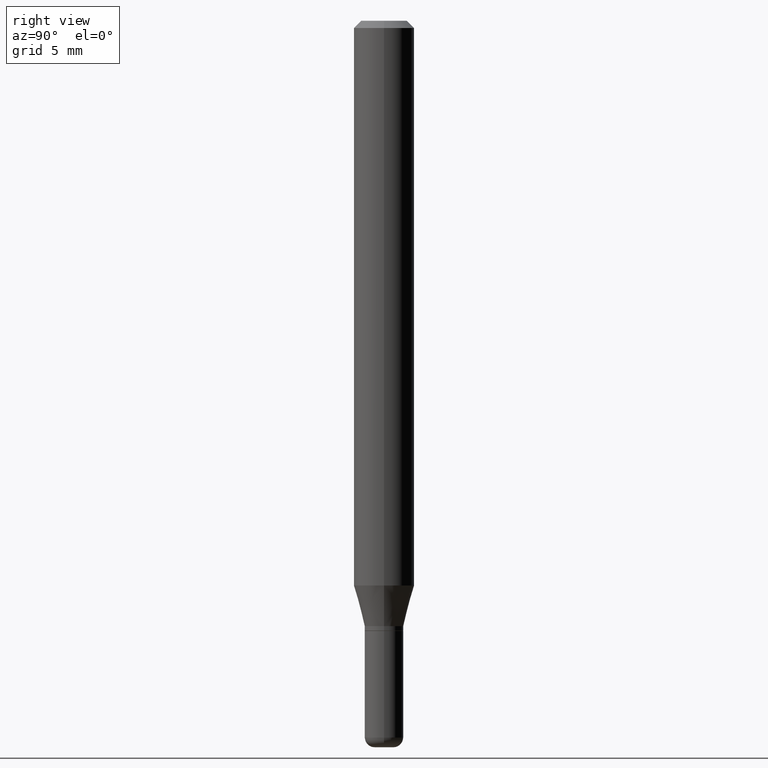
[diagram: clean part render]
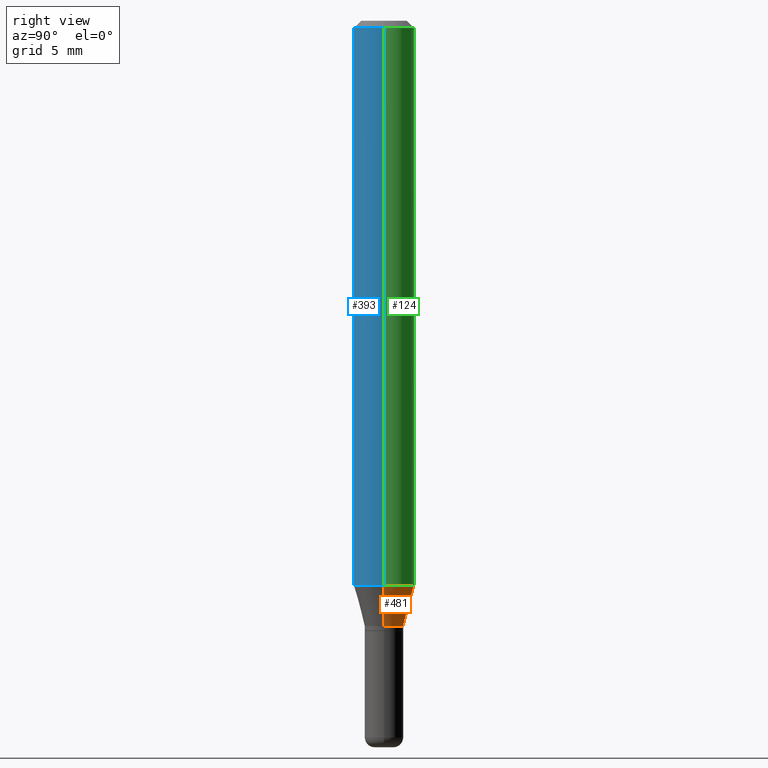
[diagram: same view with three faces highlighted in distinct colors, each labeled with its STEP entity id]
A machine part, right view with three faces highlighted in distinct colors.
Their STEP definitions:

[orange] entity #481 — the highlighted conical surface has half-angle 15 deg.
#18 = VECTOR ( 'NONE', #389, 39.37007874015748854 ) ;
#38 = EDGE_CURVE ( 'NONE', #416, #302, #231, .T. ) ;
#47 = ORIENTED_EDGE ( 'NONE', *, *, #101, .T. ) ;
#94 = CONICAL_SURFACE ( 'NONE', #390, 0.04000000000000000083, 0.2617993877991495189 ) ;
#101 = EDGE_CURVE ( 'NONE', #342, #109, #241, .T. ) ;
#109 = VERTEX_POINT ( 'NONE', #405 ) ;
#121 = DIRECTION ( 'NONE',  ( 0.2588190451025207950, 1.565188264969625912E-15, 0.9659258262890682012 ) ) ;
#129 = CARTESIAN_POINT ( 'NONE',  ( -0.04000000000000000083, -4.080134579249892145E-15, -1.250000000000000000 ) ) ;
#135 = VECTOR ( 'NONE', #121, 39.37007874015748854 ) ;
#146 = DIRECTION ( 'NONE',  ( -2.445468806185136597E-29, 3.491481338843145583E-15, 1.000000000000000000 ) ) ;
#157 = ORIENTED_EDGE ( 'NONE', *, *, #378, .T. ) ;
#213 = CARTESIAN_POINT ( 'NONE',  ( 3.056836007731421306E-29, -4.364351673553932471E-15, -1.250000000000000000 ) ) ;
#214 = DIRECTION ( 'NONE',  ( -2.445468806185136597E-29, 3.491481338843145583E-15, 1.000000000000000000 ) ) ;
#217 = CIRCLE ( 'NONE', #273, 0.06250000000000000000 ) ;
#220 = CARTESIAN_POINT ( 'NONE',  ( -0.04000000000000000083, -3.853606681786667125E-15, -1.250000000000000000 ) ) ;
#226 = AXIS2_PLACEMENT_3D ( 'NONE', #332, #146, #309 ) ;
#231 = LINE ( 'NONE', #385, #135 ) ;
#241 = LINE ( 'NONE', #129, #18 ) ;
#258 = FACE_OUTER_BOUND ( 'NONE', #496, .T. ) ;
#264 = ORIENTED_EDGE ( 'NONE', *, *, #376, .F. ) ;
#273 = AXIS2_PLACEMENT_3D ( 'NONE', #459, #335, #498 ) ;
#290 = CIRCLE ( 'NONE', #226, 0.04000000000000000083 ) ;
#292 = CARTESIAN_POINT ( 'NONE',  ( 0.04000000000000000083, -4.643670180661383298E-15, -1.250000000000000000 ) ) ;
#302 = VERTEX_POINT ( 'NONE', #435 ) ;
#309 = DIRECTION ( 'NONE',  ( 1.000000000000000000, -6.982962677686271444E-15, 0.000000000000000000 ) ) ;
#332 = CARTESIAN_POINT ( 'NONE',  ( 3.056836007731421306E-29, -4.364351673553932471E-15, -1.250000000000000000 ) ) ;
#335 = DIRECTION ( 'NONE',  ( -2.445468806185136597E-29, 3.491481338843145583E-15, 1.000000000000000000 ) ) ;
#342 = VERTEX_POINT ( 'NONE', #220 ) ;
#376 = EDGE_CURVE ( 'NONE', #302, #109, #217, .T. ) ;
#378 = EDGE_CURVE ( 'NONE', #416, #342, #290, .T. ) ;
#385 = CARTESIAN_POINT ( 'NONE',  ( 0.04000000000000000083, -4.643670180661383298E-15, -1.250000000000000000 ) ) ;
#389 = DIRECTION ( 'NONE',  ( -0.2588190451025207950, 5.211531920934546309E-15, 0.9659258262890682012 ) ) ;
#390 = AXIS2_PLACEMENT_3D ( 'NONE', #213, #214, #455 ) ;
#405 = CARTESIAN_POINT ( 'NONE',  ( -0.06250000000000000000, -3.627078784323442106E-15, -1.166028856829700366 ) ) ;
#416 = VERTEX_POINT ( 'NONE', #292 ) ;
#435 = CARTESIAN_POINT ( 'NONE',  ( 0.06250000000000000000, -4.507603161528897181E-15, -1.166028856829700366 ) ) ;
#455 = DIRECTION ( 'NONE',  ( 1.000000000000000000, -6.982962677686271444E-15, 0.000000000000000000 ) ) ;
#459 = CARTESIAN_POINT ( 'NONE',  ( 2.851487196488747125E-29, -4.071167994173504722E-15, -1.166028856829700366 ) ) ;
#481 = ADVANCED_FACE ( 'NONE', ( #258 ), #94, .T. ) ;
#496 = EDGE_LOOP ( 'NONE', ( #157, #47, #264, #497 ) ) ;
#497 = ORIENTED_EDGE ( 'NONE', *, *, #38, .F. ) ;
#498 = DIRECTION ( 'NONE',  ( 1.000000000000000000, -6.982962677686262766E-15, 0.000000000000000000 ) ) ;

[blue] entity #393 — the highlighted cylindrical surface (edge-blend (fillet) strip) has radius 1.5875 mm, axis along (-0, 0, 1).
#9 = LINE ( 'NONE', #495, #205 ) ;
#11 = DIRECTION ( 'NONE',  ( 1.000000000000000000, -6.982962677686262766E-15, 0.000000000000000000 ) ) ;
#41 = DIRECTION ( 'NONE',  ( 1.000000000000000000, -6.982962677686266711E-15, 4.876176775795935793E-29 ) ) ;
#44 = CARTESIAN_POINT ( 'NONE',  ( 2.851487196488747125E-29, -4.071167994173504722E-15, -1.166028856829700366 ) ) ;
#45 = ORIENTED_EDGE ( 'NONE', *, *, #409, .T. ) ;
#63 = DIRECTION ( 'NONE',  ( -2.445468806185136877E-29, 3.491481338843145188E-15, 1.000000000000000000 ) ) ;
#64 = ORIENTED_EDGE ( 'NONE', *, *, #120, .F. ) ;
#100 = FACE_OUTER_BOUND ( 'NONE', #328, .T. ) ;
#102 = CYLINDRICAL_SURFACE ( 'NONE', #357, 0.06250000000000000000 ) ;
#104 = AXIS2_PLACEMENT_3D ( 'NONE', #474, #398, #318 ) ;
#106 = CIRCLE ( 'NONE', #514, 0.06250000000000000000 ) ;
#109 = VERTEX_POINT ( 'NONE', #405 ) ;
#120 = EDGE_CURVE ( 'NONE', #429, #396, #363, .T. ) ;
#138 = CARTESIAN_POINT ( 'NONE',  ( 0.000000000000000000, 0.000000000000000000, 0.000000000000000000 ) ) ;
#205 = VECTOR ( 'NONE', #422, 39.37007874015748143 ) ;
#212 = EDGE_CURVE ( 'NONE', #109, #429, #280, .T. ) ;
#222 = DIRECTION ( 'NONE',  ( -2.445468806185136597E-29, 3.491481338843145583E-15, 1.000000000000000000 ) ) ;
#265 = CARTESIAN_POINT ( 'NONE',  ( 0.06250000000000000000, -4.888073874380378612E-16, -0.01499999999999970281 ) ) ;
#272 = DIRECTION ( 'NONE',  ( -2.445468806185136597E-29, 3.491481338843145583E-15, 1.000000000000000000 ) ) ;
#280 = LINE ( 'NONE', #428, #388 ) ;
#302 = VERTEX_POINT ( 'NONE', #435 ) ;
#318 = DIRECTION ( 'NONE',  ( 1.000000000000000000, -6.982962677686266711E-15, 0.000000000000000000 ) ) ;
#328 = EDGE_LOOP ( 'NONE', ( #333, #45, #480, #64 ) ) ;
#333 = ORIENTED_EDGE ( 'NONE', *, *, #212, .F. ) ;
#334 = CARTESIAN_POINT ( 'NONE',  ( -0.06250000000000000000, -1.617680897278012693E-15, -0.01499999999999970281 ) ) ;
#344 = EDGE_CURVE ( 'NONE', #302, #396, #9, .T. ) ;
#357 = AXIS2_PLACEMENT_3D ( 'NONE', #138, #272, #41 ) ;
#363 = CIRCLE ( 'NONE', #104, 0.06250000000000000000 ) ;
#388 = VECTOR ( 'NONE', #63, 39.37007874015748143 ) ;
#393 = ADVANCED_FACE ( 'NONE', ( #100 ), #102, .T. ) ;
#396 = VERTEX_POINT ( 'NONE', #265 ) ;
#398 = DIRECTION ( 'NONE',  ( -2.445468806185136597E-29, 3.491481338843145583E-15, 1.000000000000000000 ) ) ;
#405 = CARTESIAN_POINT ( 'NONE',  ( -0.06250000000000000000, -3.627078784323442106E-15, -1.166028856829700366 ) ) ;
#409 = EDGE_CURVE ( 'NONE', #109, #302, #106, .T. ) ;
#422 = DIRECTION ( 'NONE',  ( -2.445468806185136877E-29, 3.491481338843145188E-15, 1.000000000000000000 ) ) ;
#428 = CARTESIAN_POINT ( 'NONE',  ( -0.06250000000000000000, 4.440892098500626162E-16, -3.074334431409316114E-30 ) ) ;
#429 = VERTEX_POINT ( 'NONE', #334 ) ;
#435 = CARTESIAN_POINT ( 'NONE',  ( 0.06250000000000000000, -4.507603161528897181E-15, -1.166028856829700366 ) ) ;
#474 = CARTESIAN_POINT ( 'NONE',  ( 3.668203209277632395E-31, -5.237222008264614861E-17, -0.01499999999999970281 ) ) ;
#480 = ORIENTED_EDGE ( 'NONE', *, *, #344, .T. ) ;
#495 = CARTESIAN_POINT ( 'NONE',  ( 0.06250000000000000000, -4.364351673553916694E-16, 3.047610484872459871E-30 ) ) ;
#514 = AXIS2_PLACEMENT_3D ( 'NONE', #44, #222, #11 ) ;

[green] entity #124 — the highlighted cylindrical surface (edge-blend (fillet) strip) has radius 1.5875 mm, axis along (-0, 0, 1).
#9 = LINE ( 'NONE', #495, #205 ) ;
#56 = ORIENTED_EDGE ( 'NONE', *, *, #344, .F. ) ;
#63 = DIRECTION ( 'NONE',  ( -2.445468806185136877E-29, 3.491481338843145188E-15, 1.000000000000000000 ) ) ;
#68 = DIRECTION ( 'NONE',  ( 1.000000000000000000, -6.982962677686266711E-15, 4.876176775795935793E-29 ) ) ;
#70 = CARTESIAN_POINT ( 'NONE',  ( 3.668203209277632395E-31, -5.237222008264614861E-17, -0.01499999999999970281 ) ) ;
#72 = CIRCLE ( 'NONE', #491, 0.06250000000000000000 ) ;
#109 = VERTEX_POINT ( 'NONE', #405 ) ;
#112 = FACE_OUTER_BOUND ( 'NONE', #322, .T. ) ;
#124 = ADVANCED_FACE ( 'NONE', ( #112 ), #285, .T. ) ;
#162 = DIRECTION ( 'NONE',  ( -2.445468806185136597E-29, 3.491481338843145583E-15, 1.000000000000000000 ) ) ;
#165 = CARTESIAN_POINT ( 'NONE',  ( 0.000000000000000000, 0.000000000000000000, 0.000000000000000000 ) ) ;
#192 = ORIENTED_EDGE ( 'NONE', *, *, #212, .T. ) ;
#205 = VECTOR ( 'NONE', #422, 39.37007874015748143 ) ;
#212 = EDGE_CURVE ( 'NONE', #109, #429, #280, .T. ) ;
#217 = CIRCLE ( 'NONE', #273, 0.06250000000000000000 ) ;
#265 = CARTESIAN_POINT ( 'NONE',  ( 0.06250000000000000000, -4.888073874380378612E-16, -0.01499999999999970281 ) ) ;
#273 = AXIS2_PLACEMENT_3D ( 'NONE', #459, #335, #498 ) ;
#280 = LINE ( 'NONE', #428, #388 ) ;
#285 = CYLINDRICAL_SURFACE ( 'NONE', #490, 0.06250000000000000000 ) ;
#294 = EDGE_CURVE ( 'NONE', #396, #429, #72, .T. ) ;
#302 = VERTEX_POINT ( 'NONE', #435 ) ;
#319 = ORIENTED_EDGE ( 'NONE', *, *, #376, .T. ) ;
#322 = EDGE_LOOP ( 'NONE', ( #319, #192, #371, #56 ) ) ;
#334 = CARTESIAN_POINT ( 'NONE',  ( -0.06250000000000000000, -1.617680897278012693E-15, -0.01499999999999970281 ) ) ;
#335 = DIRECTION ( 'NONE',  ( -2.445468806185136597E-29, 3.491481338843145583E-15, 1.000000000000000000 ) ) ;
#344 = EDGE_CURVE ( 'NONE', #302, #396, #9, .T. ) ;
#349 = DIRECTION ( 'NONE',  ( 1.000000000000000000, -6.982962677686266711E-15, 0.000000000000000000 ) ) ;
#353 = DIRECTION ( 'NONE',  ( -2.445468806185136597E-29, 3.491481338843145583E-15, 1.000000000000000000 ) ) ;
#371 = ORIENTED_EDGE ( 'NONE', *, *, #294, .F. ) ;
#376 = EDGE_CURVE ( 'NONE', #302, #109, #217, .T. ) ;
#388 = VECTOR ( 'NONE', #63, 39.37007874015748143 ) ;
#396 = VERTEX_POINT ( 'NONE', #265 ) ;
#405 = CARTESIAN_POINT ( 'NONE',  ( -0.06250000000000000000, -3.627078784323442106E-15, -1.166028856829700366 ) ) ;
#422 = DIRECTION ( 'NONE',  ( -2.445468806185136877E-29, 3.491481338843145188E-15, 1.000000000000000000 ) ) ;
#428 = CARTESIAN_POINT ( 'NONE',  ( -0.06250000000000000000, 4.440892098500626162E-16, -3.074334431409316114E-30 ) ) ;
#429 = VERTEX_POINT ( 'NONE', #334 ) ;
#435 = CARTESIAN_POINT ( 'NONE',  ( 0.06250000000000000000, -4.507603161528897181E-15, -1.166028856829700366 ) ) ;
#459 = CARTESIAN_POINT ( 'NONE',  ( 2.851487196488747125E-29, -4.071167994173504722E-15, -1.166028856829700366 ) ) ;
#490 = AXIS2_PLACEMENT_3D ( 'NONE', #165, #162, #68 ) ;
#491 = AXIS2_PLACEMENT_3D ( 'NONE', #70, #353, #349 ) ;
#495 = CARTESIAN_POINT ( 'NONE',  ( 0.06250000000000000000, -4.364351673553916694E-16, 3.047610484872459871E-30 ) ) ;
#498 = DIRECTION ( 'NONE',  ( 1.000000000000000000, -6.982962677686262766E-15, 0.000000000000000000 ) ) ;